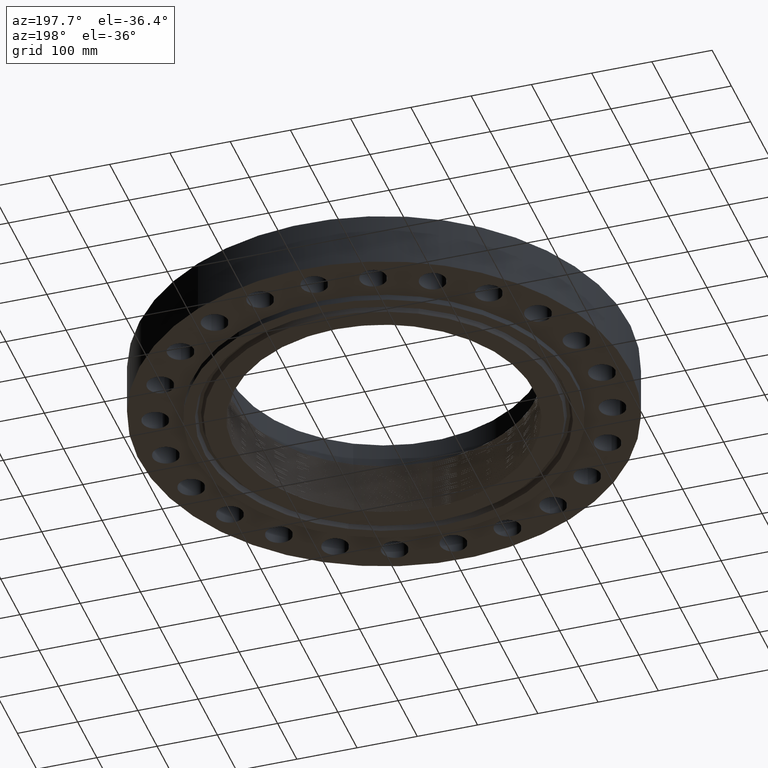
[diagram: clean part render]
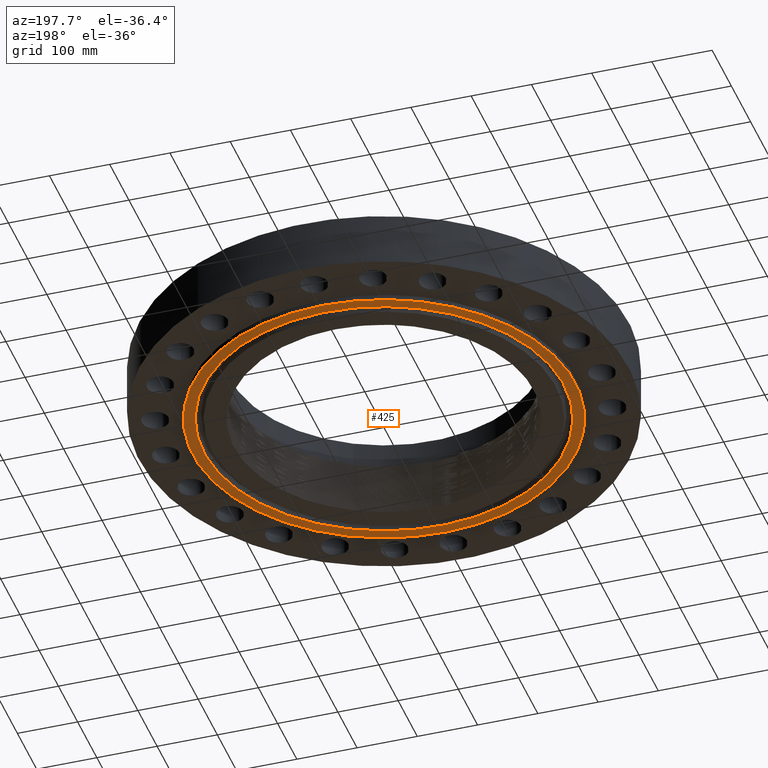
[diagram: same view with one face highlighted and labeled with its STEP entity id]
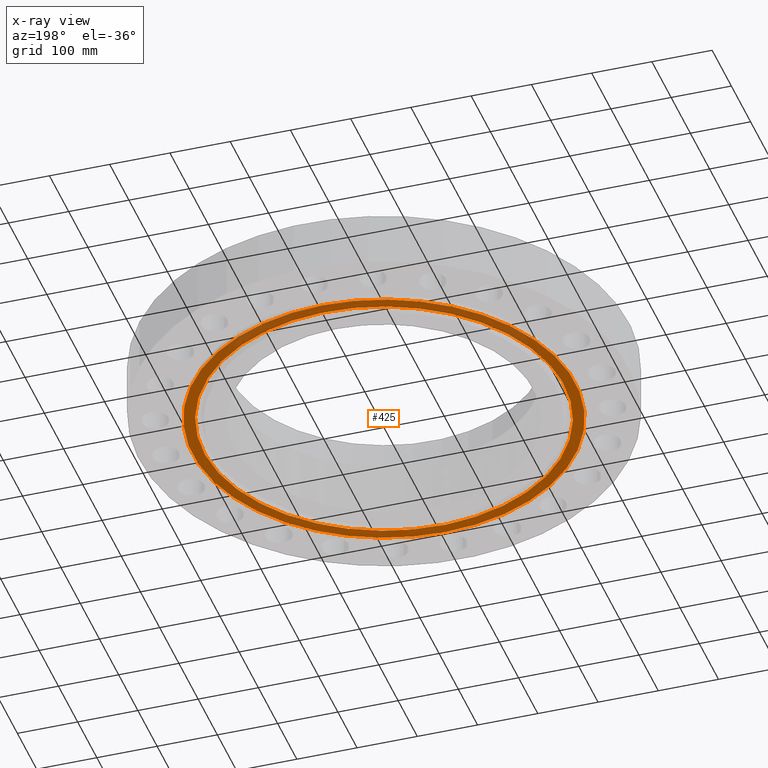
[diagram: x-ray of the same camera — body ghosted, the highlighted face saturated]
A machine part, auxiliary view. The second image highlights one B-rep face of the part: STEP entity #425.
The next image is the same camera in x-ray: the body ghosted, the highlighted face saturated — about 0% of this face is hidden behind the body in this view.
In plain terms, the highlighted planar face has unit normal (0, 0, -1).
Its self-contained STEP definition (entity closure, byte-faithful):
#195=AXIS2_PLACEMENT_3D('Plane Axis2P3D',#192,#193,#194) ;
#391=AXIS2_PLACEMENT_3D('Circle Axis2P3D',#389,#390,$) ;
#400=AXIS2_PLACEMENT_3D('Circle Axis2P3D',#398,#399,$) ;
#409=AXIS2_PLACEMENT_3D('Circle Axis2P3D',#407,#408,$) ;
#418=AXIS2_PLACEMENT_3D('Circle Axis2P3D',#416,#417,$) ;
#192=CARTESIAN_POINT('Axis2P3D Location',(0.,0.,-0.375000000001)) ;
#389=CARTESIAN_POINT('Axis2P3D Location',(0.,0.,-0.375000000001)) ;
#393=CARTESIAN_POINT('Vertex',(5.99281923258,10.9697820237,-0.375000000001)) ;
#395=CARTESIAN_POINT('Vertex',(-5.99281923258,-10.9697820237,-0.375000000001)) ;
#398=CARTESIAN_POINT('Axis2P3D Location',(0.,0.,-0.375000000001)) ;
#407=CARTESIAN_POINT('Axis2P3D Location',(5.59482469102E-016,2.23792987641E-015,-0.375000000001)) ;
#411=CARTESIAN_POINT('Vertex',(5.64074110266,-10.3253073298,-0.375000000001)) ;
#413=CARTESIAN_POINT('Vertex',(-5.64074110266,10.3253073298,-0.375000000001)) ;
#416=CARTESIAN_POINT('Axis2P3D Location',(-1.39870617276E-015,0.,-0.375000000001)) ;
#193=DIRECTION('Axis2P3D Direction',(0.,0.,-0.0393700787402)) ;
#194=DIRECTION('Axis2P3D XDirection',(0.0393700787402,0.,0.)) ;
#390=DIRECTION('Axis2P3D Direction',(0.,0.,-0.0393700787402)) ;
#399=DIRECTION('Axis2P3D Direction',(0.,0.,-0.0393700787402)) ;
#408=DIRECTION('Axis2P3D Direction',(0.,0.,-0.0393700787402)) ;
#417=DIRECTION('Axis2P3D Direction',(0.,0.,-0.0393700787402)) ;
#404=ORIENTED_EDGE('',*,*,#397,.T.) ;
#405=ORIENTED_EDGE('',*,*,#402,.T.) ;
#422=ORIENTED_EDGE('',*,*,#415,.F.) ;
#423=ORIENTED_EDGE('',*,*,#420,.F.) ;
#424=FACE_BOUND('',#421,.T.) ;
#425=ADVANCED_FACE('PartBody',(#406,#424),#196,.T.) ;
#392=CIRCLE('generated circle',#391,12.5000000001) ;
#401=CIRCLE('generated circle',#400,12.5000000001) ;
#410=CIRCLE('generated circle',#409,11.765625) ;
#419=CIRCLE('generated circle',#418,11.765625) ;
#397=EDGE_CURVE('',#394,#396,#392,.T.) ;
#402=EDGE_CURVE('',#396,#394,#401,.T.) ;
#415=EDGE_CURVE('',#412,#414,#410,.T.) ;
#420=EDGE_CURVE('',#414,#412,#419,.T.) ;
#403=EDGE_LOOP('',(#404,#405)) ;
#421=EDGE_LOOP('',(#422,#423)) ;
#406=FACE_OUTER_BOUND('',#403,.T.) ;
#196=PLANE('',#195) ;
#394=VERTEX_POINT('',#393) ;
#396=VERTEX_POINT('',#395) ;
#412=VERTEX_POINT('',#411) ;
#414=VERTEX_POINT('',#413) ;